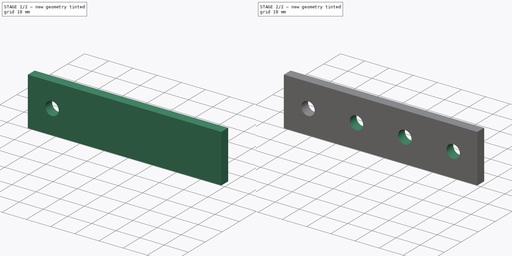
[diagram: build sequence overview — one tinted view per stage of 2, left to right]
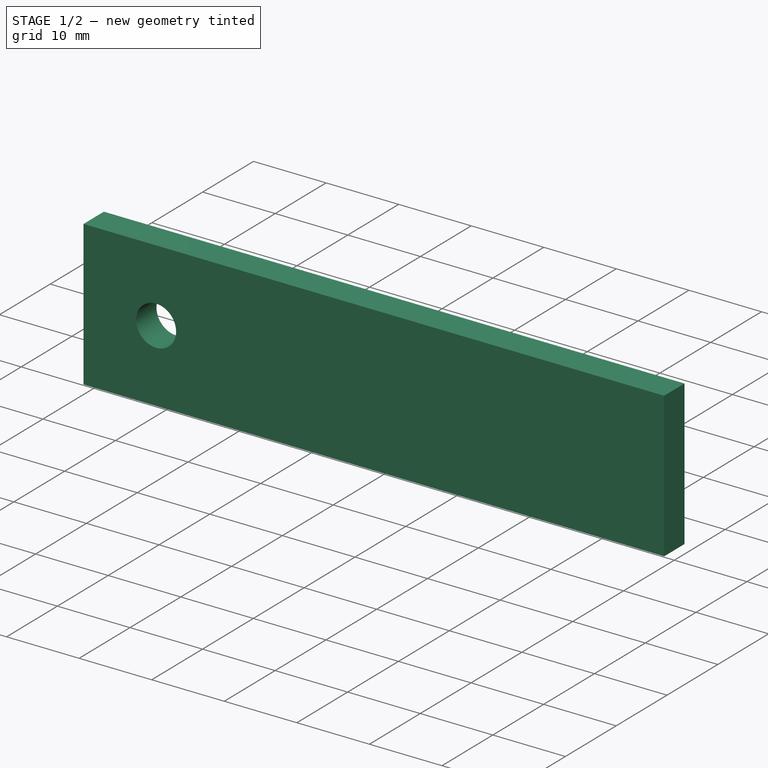
[diagram: stage 1 of 2 — iso view after this stage's code; geometry added in this stage tinted green]
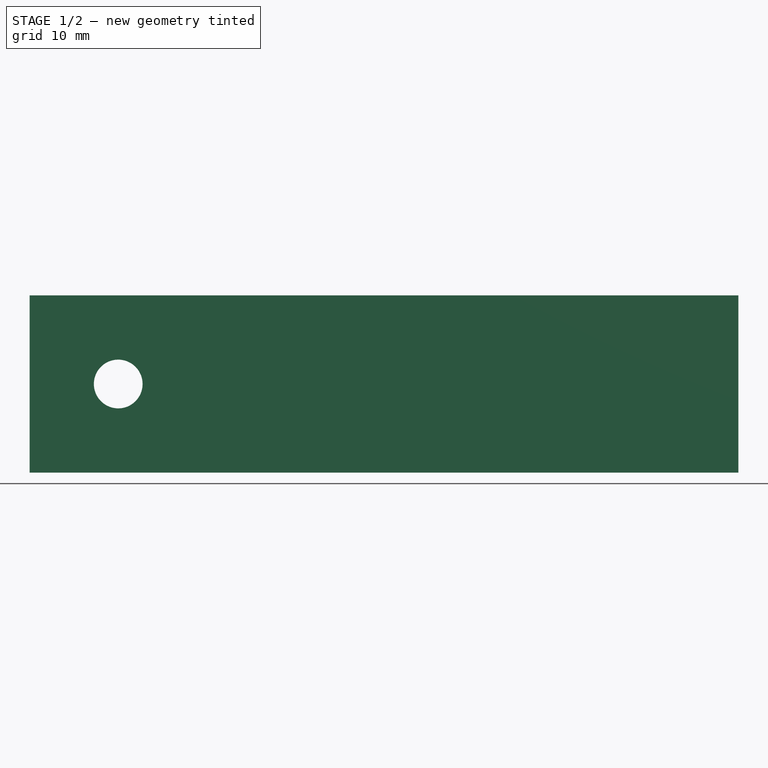
[diagram: stage 1 of 2 — front view after this stage's code; geometry added in this stage tinted green]
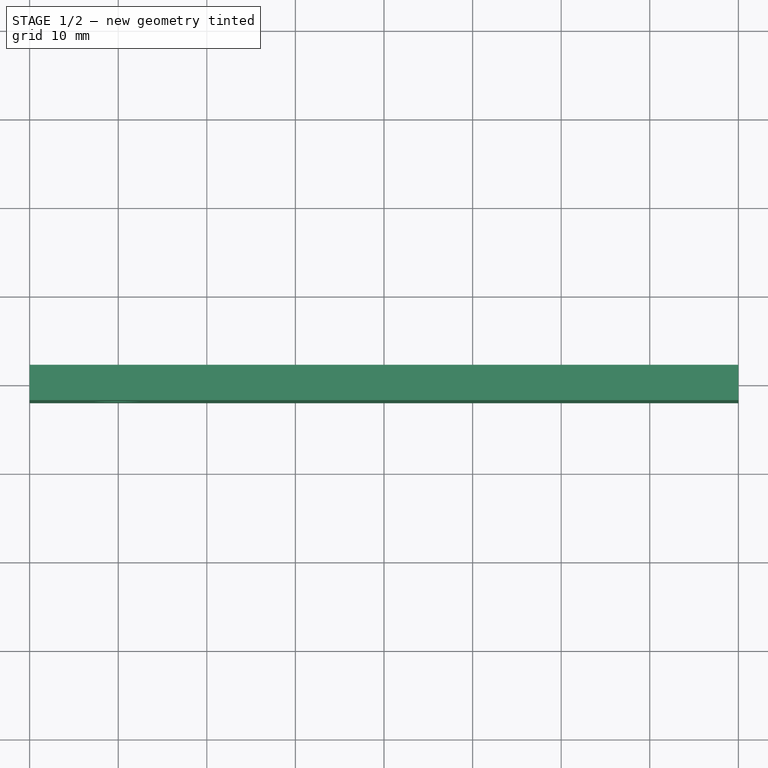
[diagram: stage 1 of 2 — top view after this stage's code; geometry added in this stage tinted green]
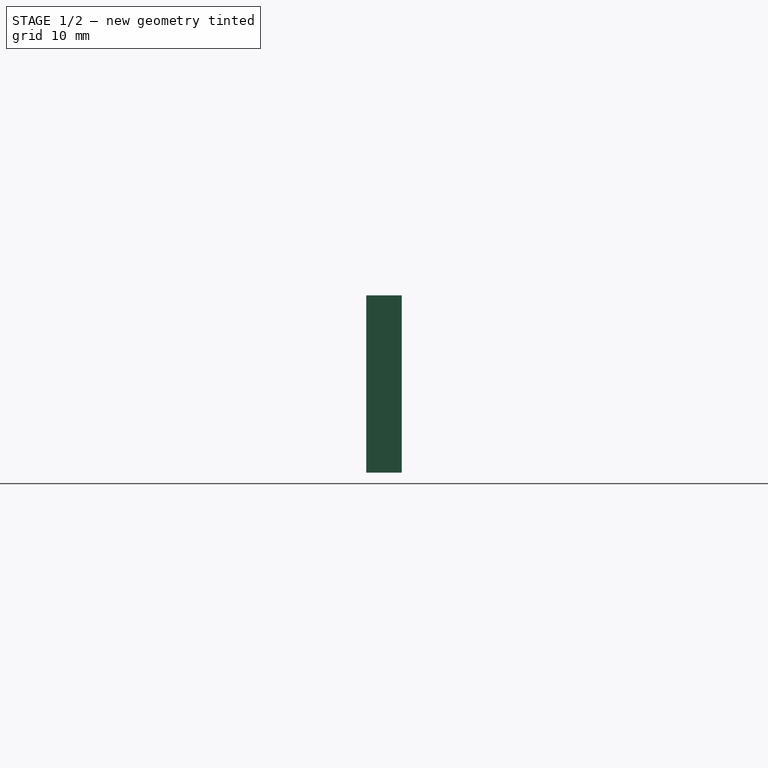
[diagram: stage 1 of 2 — right view after this stage's code; geometry added in this stage tinted green]
FCSTD DOCUMENT  (FreeCAD 0.21R30492 (Git))
Label: Straight_brackets
License: Creative Commons Attribution-NonCommercial-ShareAlike
LicenseURL: http://creativecommons.org/licenses/by-nc-sa/4.0/
objects: Sketcher::SketchObject×2, Spreadsheet::Sheet×1, PartDesign::Pad×1, PartDesign::Hole×1, PartDesign::LinearPattern×1, PartDesign::Body×1, App::Part×1
note: 8 computed .brp shape members not serialized (recipe doc carries the construction recipe); baked Part::Feature solids carry a one-line shape summary decoded from their .brp

FEATURE [Spreadsheet::Sheet] Spreadsheet
  cells = A1=Collection of T shape corner brackets to be used wth T slot Aluminum profiles; A4=Profile size:; B4(Profile_size)=20; C4=Could be: 20, 30, 40; A6=Model; B6=Width; C6=Height; D6=Chamfer Width; E6=Chamfer Height; F6=Horizontal holes; G6=Vertical holes; H6=Hole size; A7==hiddenref(Part.shapeType.String); B7(Width)==.B9; C7(Height)==.C9; D7(ch_W)==.D9; E7(ch_H)==.E9; F7(holesH)==.F9; G7(holesV)==.G9; H7(hole_size)==.H9; A8=3 holes; B8==3 * B4; C8==B4; D8=0.1; E8=0.1; F8=3; G8=1; H8=M5; A9=4 holes; B9==4 * B4; C9==B4; D9==B4 - 0.1; E9==B4; F9=4; G9=1; H9=M5; A10=5 holes; B10==5 * B4; C10==B4; D10==B4 - 0.1; E10==2 * B4 - 0.1; F10=5; G10=1; H10=M5
  expr: .cells.Bind.B7.ZZ7 = tuple(.cells; <<B>> + str(hiddenref(Part.shapeType) + 8); <<ZZ>> + str(hiddenref(Part.shapeType) + 8))
FEATURE [Sketcher::SketchObject] Sketch
  FullyConstrained = true
  MapMode = 5
  Placement = pos=(0,0,0) rot=(1,0,0;1.5708rad)
  Support = -> [XZ_Plane001]
  expr: Constraints[10] = <<Spreadsheet>>.Height
  expr: Constraints[11] = <<Spreadsheet>>.Width
  sketch-geometry (5):
    g0: LineSegment StartX=-40 StartY=10 StartZ=0 EndX=-40 EndY=-10 EndZ=0
    g1: LineSegment StartX=-40 StartY=-10 StartZ=0 EndX=40 EndY=-10 EndZ=0
    g2: LineSegment StartX=40 StartY=-10 StartZ=0 EndX=40 EndY=10 EndZ=0
    g3: LineSegment StartX=40 StartY=10 StartZ=0 EndX=-40 EndY=10 EndZ=0
    g4: GeomPoint X=0 Y=0 Z=0
  constraints (12):
    c: Coincident(g0,g1)
    c: Coincident(g1,g2)
    c: Coincident(g2,g3)
    c: Coincident(g3,g0)
    c: Horizontal(g1)
    c: Horizontal(g3)
    c: Vertical(g0)
    c: Vertical(g2)
    c: Symmetric(g1,g0,g4)
    c: Coincident(g4,g-1)
    c: DistanceY(g0,g0) = 20
    c: DistanceX(g3,g3) = 80
FEATURE [PartDesign::Pad] Pad
  Direction = (0,-1,2e-16)
  Length = 4
  Length2 = 10
  Midplane = true
  Placement = pos=(0,0,0) rot=(1,0,0;1.5708rad)
  Profile = -> Sketch
  ReferenceAxis = -> Sketch [N_Axis]
  Type = 0
FEATURE [Sketcher::SketchObject] Sketch001
  FullyConstrained = true
  MapMode = 5
  Placement = pos=(0,-2,4e-16) rot=(1,0,0;1.5708rad)
  Support = -> [Pad]
  expr: Constraints[2] = 10 + -<<Spreadsheet>>.holesH * <<Spreadsheet>>.Profile_size / 2
  sketch-geometry (1):
    g0: Circle CenterX=-30 CenterY=0 CenterZ=0 NormalX=0 NormalY=0 NormalZ=1 AngleXU=0 Radius=2.5
  constraints (3):
    c: PointOnObject(g0,g-1)
    c: Diameter(g0) = 5
    c: DistanceX(g0) = -30
FEATURE [PartDesign::Hole] Hole
  BaseFeature = -> Pad
  CustomThreadClearance = 0
  Depth = 25
  DepthType = 0
  Diameter = 5.5
  DrillForDepth = false
  DrillPoint = 1
  DrillPointAngle = 118
  HoleCutCountersinkAngle = 90
  HoleCutCustomValues = false
  HoleCutDepth = 0
  HoleCutDiameter = 0
  HoleCutType = 0
  ModelThread = false
  Placement = pos=(0,0,0) rot=(1,0,0;1.5708rad)
  Profile = -> Sketch001
  Tapered = false
  TaperedAngle = 90
  ThreadClass = 0
  ThreadDepth = 25
  ThreadDepthType = 0
  ThreadDirection = 0
  ThreadFit = 0
  ThreadSize = 13
  ThreadType = 1
  Threaded = false
  UseCustomThreadClearance = false
  expr: ThreadSize = <<Spreadsheet>>.hole_size
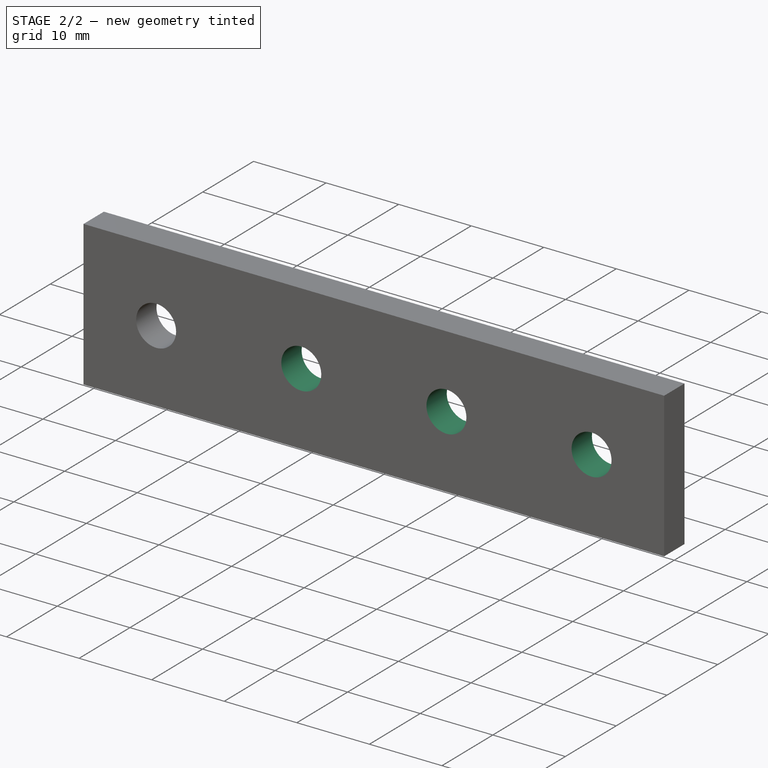
[diagram: stage 2 of 2 — iso view after this stage's code; geometry added in this stage tinted green]
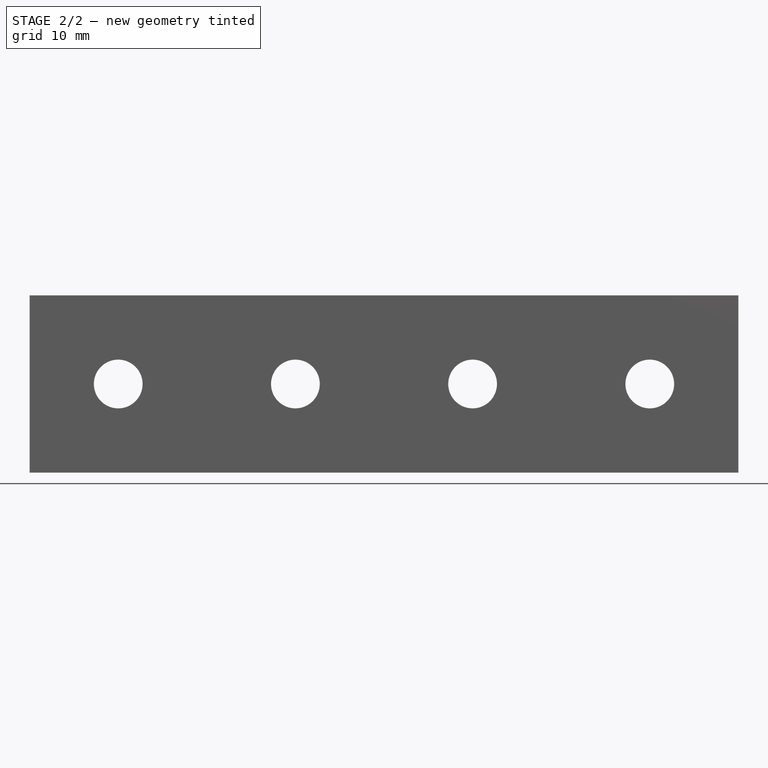
[diagram: stage 2 of 2 — front view after this stage's code; geometry added in this stage tinted green]
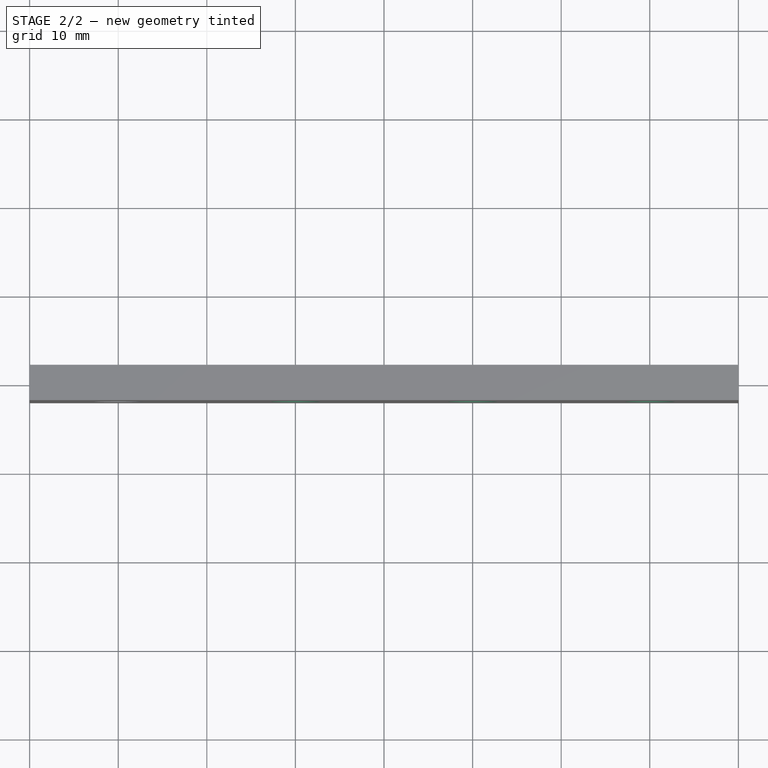
[diagram: stage 2 of 2 — top view after this stage's code; geometry added in this stage tinted green]
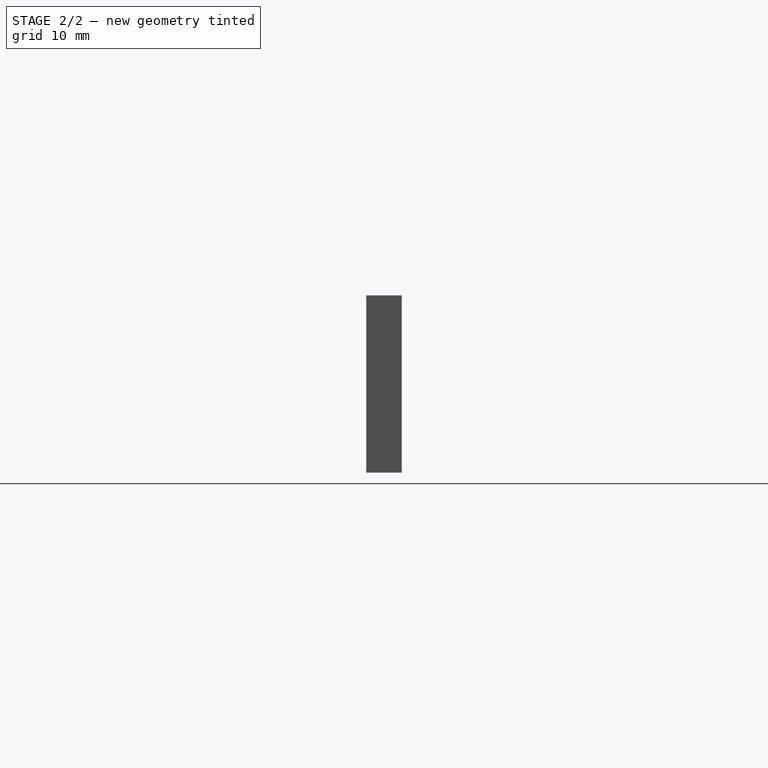
[diagram: stage 2 of 2 — right view after this stage's code; geometry added in this stage tinted green]
FEATURE [PartDesign::LinearPattern] LinearPattern
  BaseFeature = -> Hole
  Direction = -> Sketch001 [H_Axis]
  Length = 60
  Occurrences = 4
  Originals = -> [Hole]
  Placement = pos=(0,0,0) rot=(1,0,0;1.5708rad)
  expr: Length = <<Spreadsheet>>.Profile_size * (Spreadsheet.holesH - 1)
  expr: Occurrences = <<Spreadsheet>>.holesH
FEATURE [PartDesign::Body] Body
  Group = -> [Sketch,Pad,Sketch001,Hole,LinearPattern]
  Origin = -> Origin001
  Tip = -> LinearPattern
FEATURE [App::Part] Part  label="Straight bracket"
  Group = -> [Body]
  Origin = -> Origin
  shapeType = 1
  expr: .shapeType.Enum = Spreadsheet.cells[<<A8:|>>]
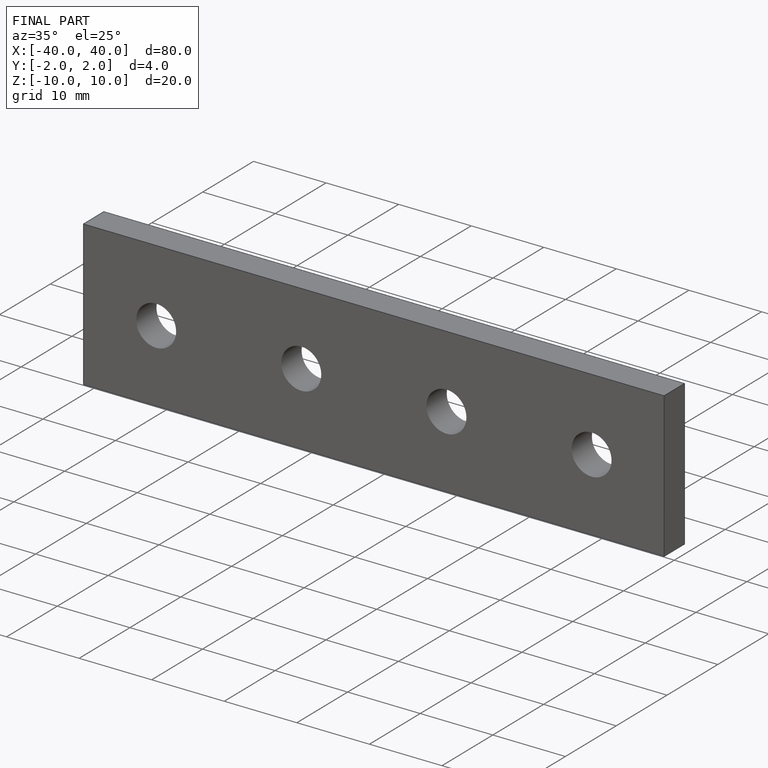
[diagram: finished part — iso view with bounding-box wireframe]
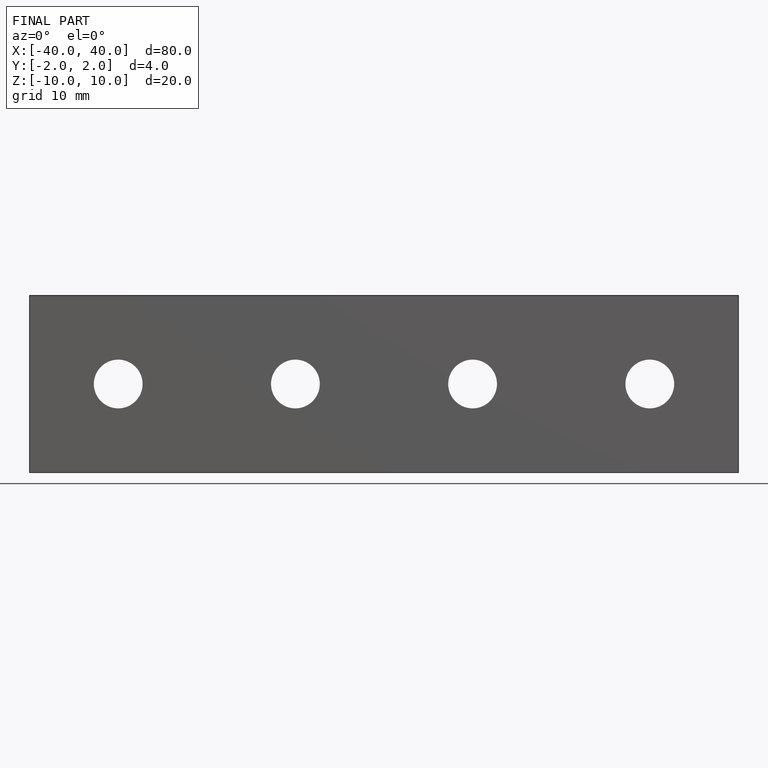
[diagram: finished part — front view with bounding-box wireframe]
